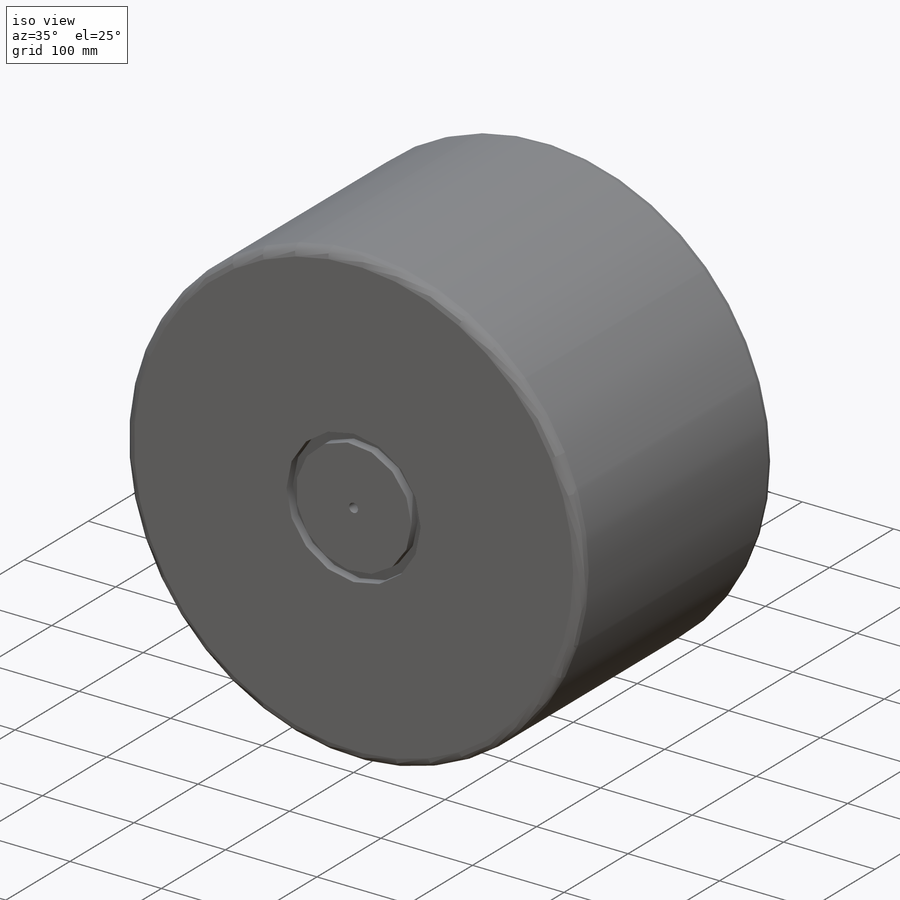
[diagram: iso view]
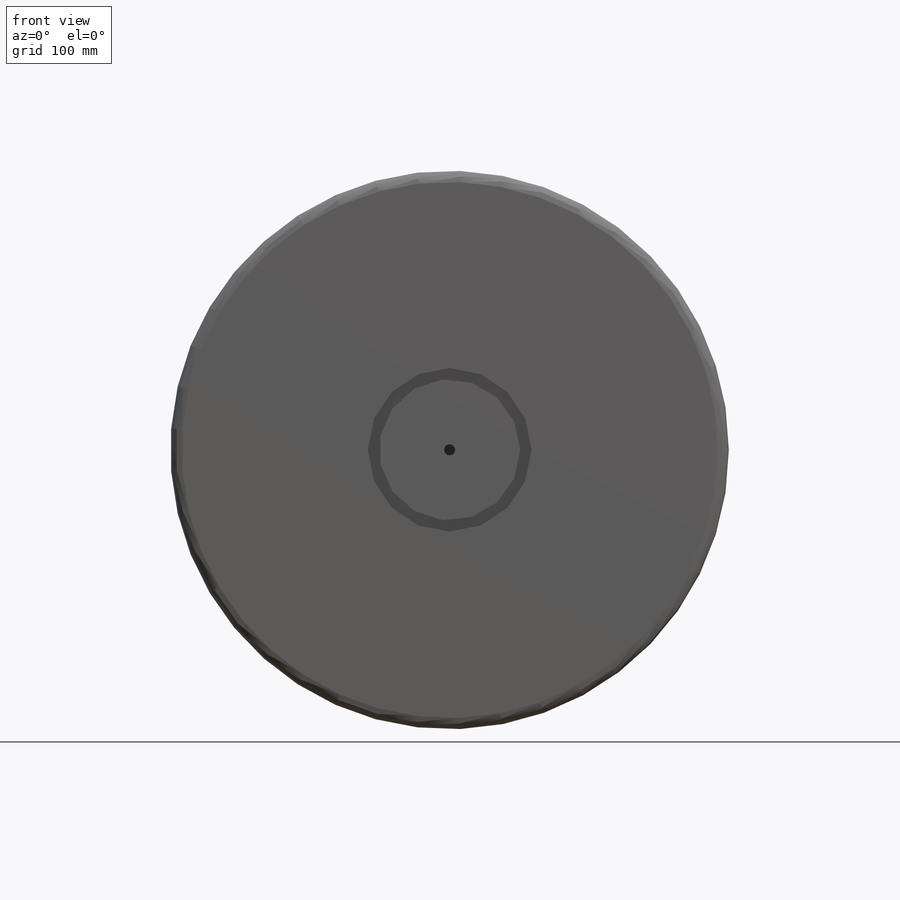
[diagram: front view]
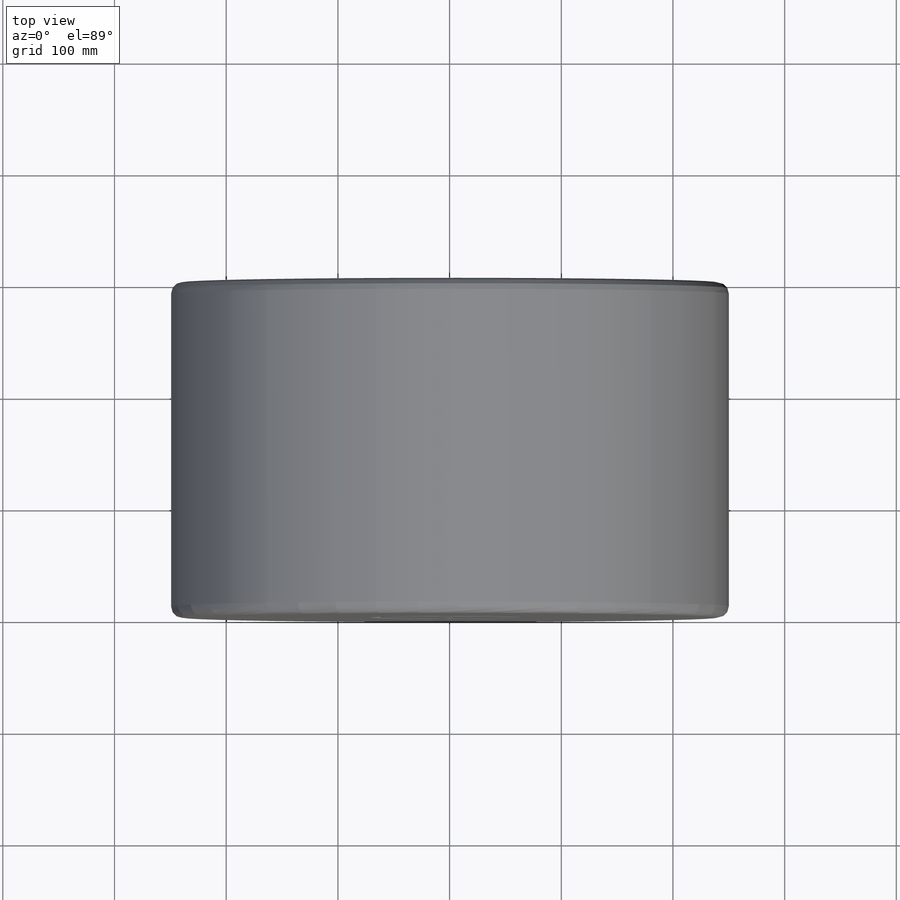
[diagram: top view]
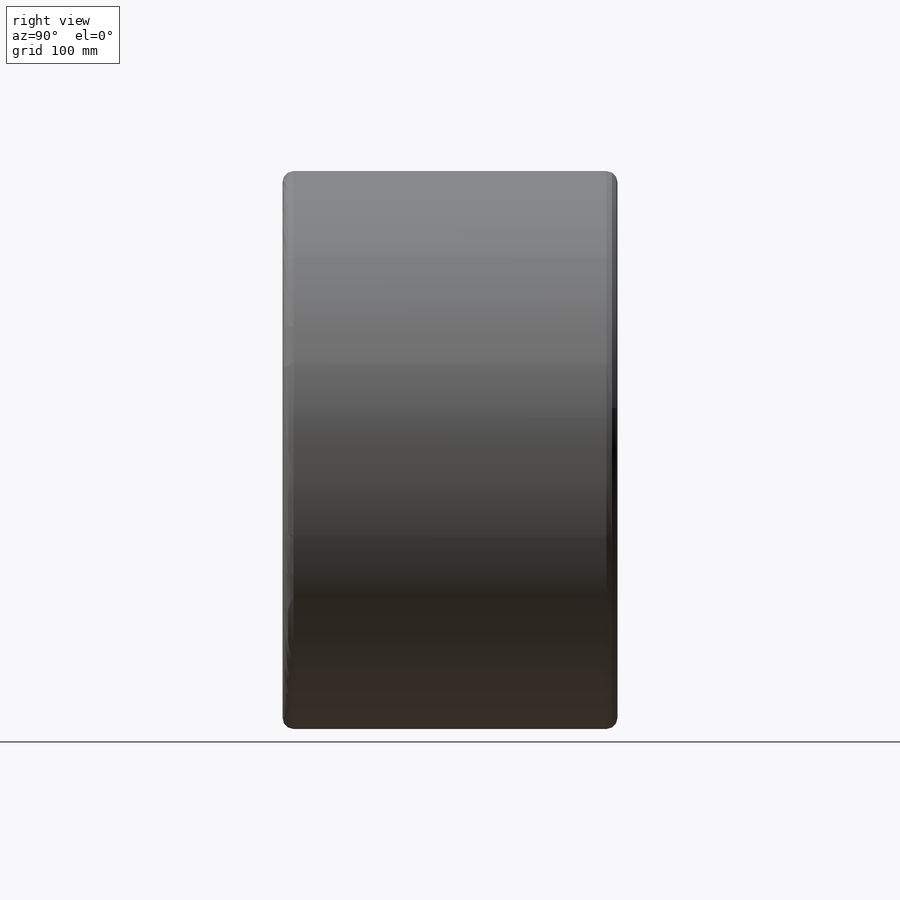
[diagram: right view]
SOLIDWORKS PART (.sldprt)
format: sldprt  version: not decoded by parser v0  size: 3,530,752 bytes
history: native  units: mm
features: sketch x7, cut_extrude x4, material x1, extrude x1, revolve x1, fillet x1, plane x1 (+13 scaffold rows collapsed)
feature tree (29):
  scaffold x13  (default folders/planes/origin — collapsed)
  material  "6061 Alloy"
  sketch  "Sketch1"  dims[D1=500.0mm]
  extrude  "Extrude1"  Depth=300mm
  sketch  "Sketch2"  dims[D1=10.0mm]
  cut_extrude  "Cut-Extrude1"  Depth=20mm
  sketch  "Sketch3"  dims[D2=400.0mm D1=50.0mm]
  cut_extrude  "Cut-Extrude2"  Depth=100mm
  sketch  "Sketch4"
  cut_extrude  "Cut-Extrude3"  Depth=20mm
  sketch  "Sketch5"  dims[D1=~161.907085mm]
  revolve  "Revolve1"  Angle=360deg
  fillet  "Fillet1"  Radius=10mm
  sketch  "Sketch6"  dims[D1=10.0mm]
  cut_extrude  "Cut-Extrude4"  Depth=10mm
  plane  "Plane1"
  sketch  "Sketch7"
decode coverage: 12 of 14 modeling features carry decoded parameters
note: ~ marks probable driven/reference dimensions
note: suppression state not decoded; provenance and decode notes live in map.json
